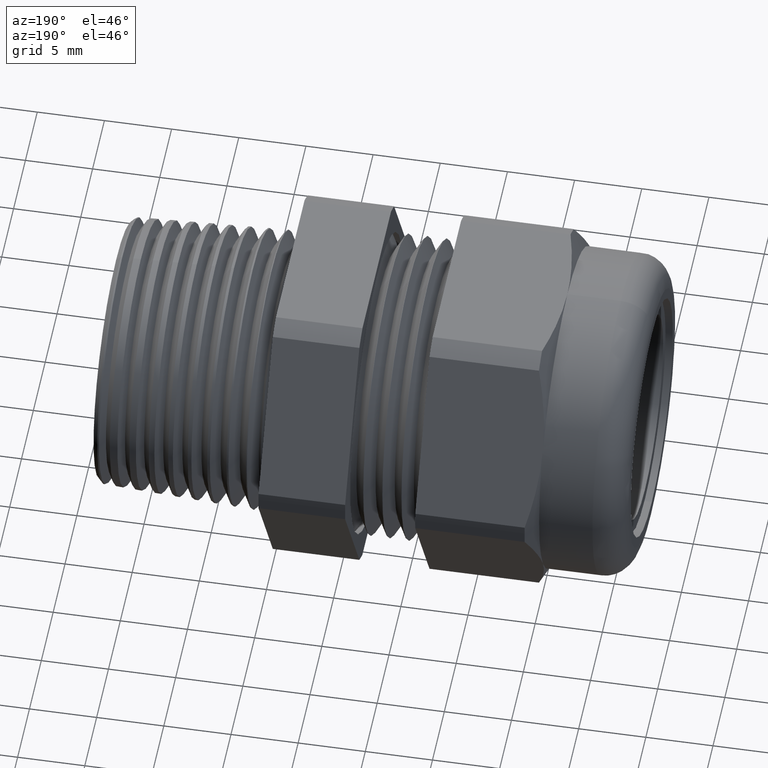
[diagram: clean part render]
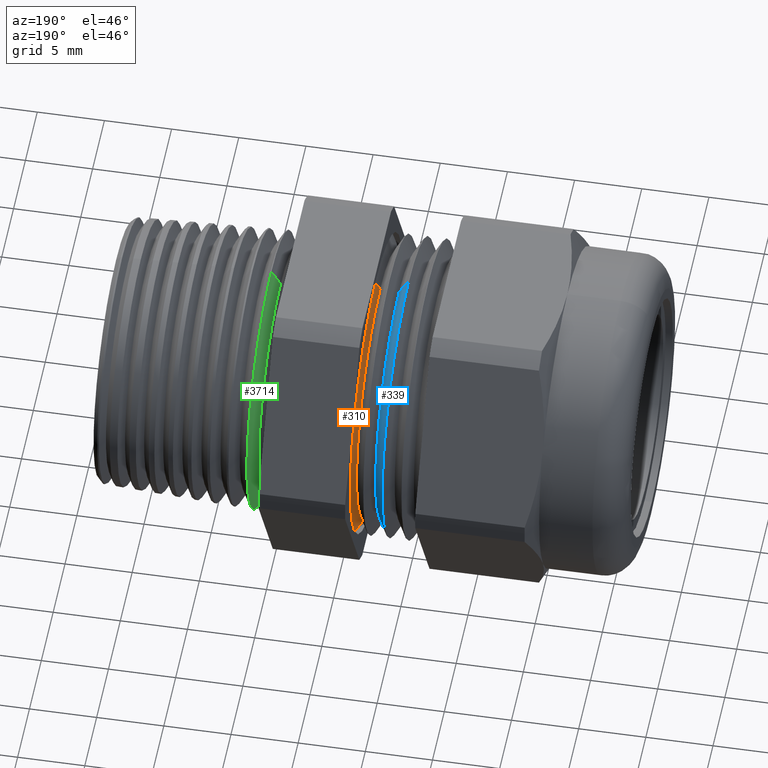
[diagram: same view with three faces highlighted in distinct colors, each labeled with its STEP entity id]
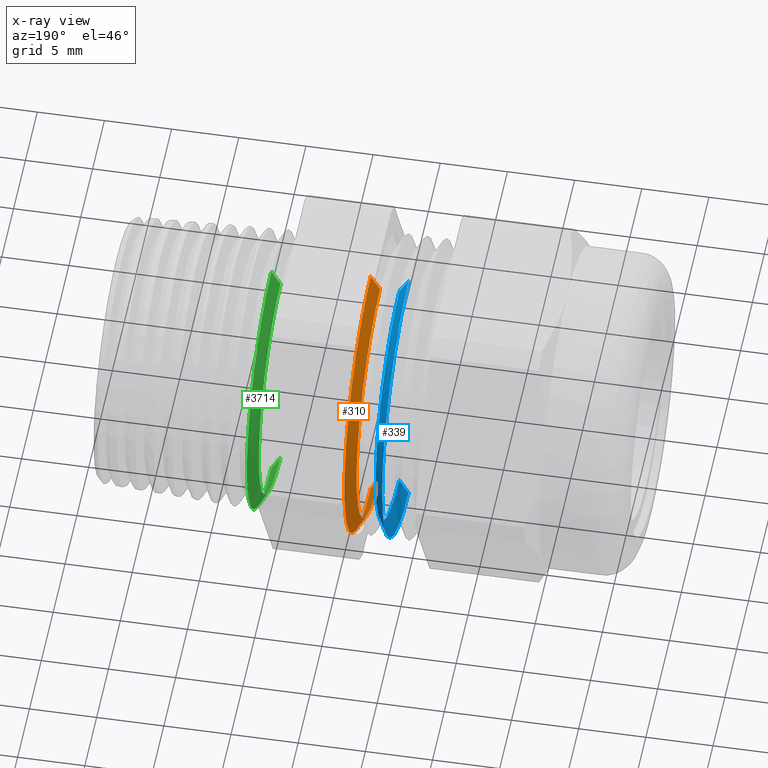
[diagram: x-ray of the same camera — body ghosted, the three highlighted faces saturated]
A machine part, auxiliary view with three faces highlighted in distinct colors.
The next image is the same camera in x-ray (body ghosted, the three faces saturated) — at least one of them is partly hidden behind the body in this view.
Their STEP definitions:

[orange] entity #310 — the highlighted conical surface has half-angle 60 deg.
#310 = ADVANCED_FACE ( 'NONE', ( #1347 ), #1345, .T. ) ;
#311 = EDGE_LOOP ( 'NONE', ( #334, #335, #328, #3715 ) ) ;
#327 = VERTEX_POINT ( 'NONE', #1383 ) ;
#328 = ORIENTED_EDGE ( 'NONE', *, *, #329, .F. ) ;
#329 = EDGE_CURVE ( 'NONE', #330, #337, #1382, .T. ) ;
#330 = VERTEX_POINT ( 'NONE', #1377 ) ;
#334 = ORIENTED_EDGE ( 'NONE', *, *, #3699, .T. ) ;
#335 = ORIENTED_EDGE ( 'NONE', *, *, #336, .T. ) ;
#336 = EDGE_CURVE ( 'NONE', #327, #337, #1374, .T. ) ;
#337 = VERTEX_POINT ( 'NONE', #1430 ) ;
#1341 = DIRECTION ( 'NONE',  ( 0.0000000000000000000, 0.0000000000000000000, -1.000000000000000000 ) ) ;
#1342 = DIRECTION ( 'NONE',  ( 1.000000000000000000, 0.0000000000000000000, 0.0000000000000000000 ) ) ;
#1343 = CARTESIAN_POINT ( 'NONE',  ( -0.2636666794885450500, 0.0000000000000000000, 0.0000000000000000000 ) ) ;
#1344 = AXIS2_PLACEMENT_3D ( 'NONE', #1343, #1342, #1341 ) ;
#1345 = CONICAL_SURFACE ( 'NONE', #1344, 0.3922686249999999800, 1.047197551196595600 ) ;
#1347 = FACE_OUTER_BOUND ( 'NONE', #311, .T. ) ;
#1367 = DIRECTION ( 'NONE',  ( 0.5000000000000017800, 1.060575238724905400E-016, 0.8660254037844374900 ) ) ;
#1368 = VECTOR ( 'NONE', #1367, 39.37007874015748100 ) ;
#1369 = CARTESIAN_POINT ( 'NONE',  ( -0.2636666794885450500, 4.803905160121833900E-017, 0.3922686249999999800 ) ) ;
#1374 = LINE ( 'NONE', #1369, #1368 ) ;
#1377 = CARTESIAN_POINT ( 'NONE',  ( -0.2361666923104228900, 0.0000000000000000000, -0.4399000000000000100 ) ) ;
#1378 = DIRECTION ( 'NONE',  ( 0.0000000000000000000, 0.0000000000000000000, -1.000000000000000000 ) ) ;
#1379 = DIRECTION ( 'NONE',  ( 1.000000000000000000, 0.0000000000000000000, 0.0000000000000000000 ) ) ;
#1380 = CARTESIAN_POINT ( 'NONE',  ( -0.2361666923104228900, 0.0000000000000000000, 0.0000000000000000000 ) ) ;
#1381 = AXIS2_PLACEMENT_3D ( 'NONE', #1380, #1379, #1378 ) ;
#1382 = CIRCLE ( 'NONE', #1381, 0.4399000000000000100 ) ;
#1383 = CARTESIAN_POINT ( 'NONE',  ( -0.2636666794885450500, 5.095563214785520700E-017, 0.3922686249999999800 ) ) ;
#1430 = CARTESIAN_POINT ( 'NONE',  ( -0.2361666923104228900, 5.387221269449206900E-017, 0.4399000000000000100 ) ) ;
#3104 = DIRECTION ( 'NONE',  ( 0.0000000000000000000, 0.0000000000000000000, -1.000000000000000000 ) ) ;
#3105 = DIRECTION ( 'NONE',  ( 1.000000000000000000, 0.0000000000000000000, 0.0000000000000000000 ) ) ;
#3106 = AXIS2_PLACEMENT_3D ( 'NONE', #3111, #3105, #3104 ) ;
#3107 = CIRCLE ( 'NONE', #3106, 0.3922686249999999800 ) ;
#3111 = CARTESIAN_POINT ( 'NONE',  ( -0.2636666794885450500, 0.0000000000000000000, 0.0000000000000000000 ) ) ;
#3128 = DIRECTION ( 'NONE',  ( 0.5000000000000017800, 0.0000000000000000000, -0.8660254037844374900 ) ) ;
#3129 = VECTOR ( 'NONE', #3128, 39.37007874015748100 ) ;
#3130 = CARTESIAN_POINT ( 'NONE',  ( -0.2636666794885450500, 0.0000000000000000000, -0.3922686249999999800 ) ) ;
#3131 = LINE ( 'NONE', #3130, #3129 ) ;
#3132 = CARTESIAN_POINT ( 'NONE',  ( -0.2636666794885450500, 0.0000000000000000000, -0.3922686249999999800 ) ) ;
#3699 = EDGE_CURVE ( 'NONE', #3716, #327, #3107, .T. ) ;
#3715 = ORIENTED_EDGE ( 'NONE', *, *, #3717, .F. ) ;
#3716 = VERTEX_POINT ( 'NONE', #3132 ) ;
#3717 = EDGE_CURVE ( 'NONE', #3716, #330, #3131, .T. ) ;

[blue] entity #339 — the highlighted conical surface has half-angle 60 deg.
#304 = VERTEX_POINT ( 'NONE', #1356 ) ;
#305 = EDGE_CURVE ( 'NONE', #343, #304, #1355, .T. ) ;
#316 = EDGE_LOOP ( 'NONE', ( #340, #319, #3533, #347 ) ) ;
#319 = ORIENTED_EDGE ( 'NONE', *, *, #320, .T. ) ;
#320 = EDGE_CURVE ( 'NONE', #342, #321, #1397, .T. ) ;
#321 = VERTEX_POINT ( 'NONE', #1393 ) ;
#339 = ADVANCED_FACE ( 'NONE', ( #1424 ), #1423, .T. ) ;
#340 = ORIENTED_EDGE ( 'NONE', *, *, #341, .F. ) ;
#341 = EDGE_CURVE ( 'NONE', #342, #343, #1417, .T. ) ;
#342 = VERTEX_POINT ( 'NONE', #1413 ) ;
#343 = VERTEX_POINT ( 'NONE', #1412 ) ;
#347 = ORIENTED_EDGE ( 'NONE', *, *, #305, .F. ) ;
#386 = EDGE_CURVE ( 'NONE', #321, #304, #1517, .T. ) ;
#1352 = DIRECTION ( 'NONE',  ( -0.4999999999999962800, 0.0000000000000000000, 0.8660254037844408200 ) ) ;
#1353 = VECTOR ( 'NONE', #1352, 39.37007874015748100 ) ;
#1354 = CARTESIAN_POINT ( 'NONE',  ( -0.3471666666666668500, 0.0000000000000000000, 0.4399000000000000100 ) ) ;
#1355 = LINE ( 'NONE', #1354, #1353 ) ;
#1356 = CARTESIAN_POINT ( 'NONE',  ( -0.3471666666666668500, 0.0000000000000000000, 0.4399000000000000100 ) ) ;
#1393 = CARTESIAN_POINT ( 'NONE',  ( -0.3471666666666668500, 5.387221269449206900E-017, -0.4399000000000000100 ) ) ;
#1394 = DIRECTION ( 'NONE',  ( -0.4999999999999962800, 1.060575238724909500E-016, -0.8660254037844408200 ) ) ;
#1395 = VECTOR ( 'NONE', #1394, 39.37007874015748100 ) ;
#1396 = CARTESIAN_POINT ( 'NONE',  ( -0.3471666666666668500, 5.387221269449206900E-017, -0.4399000000000000100 ) ) ;
#1397 = LINE ( 'NONE', #1396, #1395 ) ;
#1412 = CARTESIAN_POINT ( 'NONE',  ( -0.3196666794885451000, 5.095563214785520700E-017, 0.3922686249999999800 ) ) ;
#1413 = CARTESIAN_POINT ( 'NONE',  ( -0.3196666794885451000, 0.0000000000000000000, -0.3922686249999999800 ) ) ;
#1414 = DIRECTION ( 'NONE',  ( 0.0000000000000000000, 0.0000000000000000000, -1.000000000000000000 ) ) ;
#1415 = DIRECTION ( 'NONE',  ( 1.000000000000000000, 0.0000000000000000000, 0.0000000000000000000 ) ) ;
#1416 = AXIS2_PLACEMENT_3D ( 'NONE', #1422, #1415, #1414 ) ;
#1417 = CIRCLE ( 'NONE', #1416, 0.3922686249999999800 ) ;
#1418 = DIRECTION ( 'NONE',  ( 0.0000000000000000000, 0.0000000000000000000, 1.000000000000000000 ) ) ;
#1419 = DIRECTION ( 'NONE',  ( -1.000000000000000000, 0.0000000000000000000, 0.0000000000000000000 ) ) ;
#1420 = CARTESIAN_POINT ( 'NONE',  ( -0.3471666666666668500, 0.0000000000000000000, 0.0000000000000000000 ) ) ;
#1421 = AXIS2_PLACEMENT_3D ( 'NONE', #1420, #1419, #1418 ) ;
#1422 = CARTESIAN_POINT ( 'NONE',  ( -0.3196666794885451000, 0.0000000000000000000, 0.0000000000000000000 ) ) ;
#1423 = CONICAL_SURFACE ( 'NONE', #1421, 0.4399000000000000100, 1.047197551196602100 ) ;
#1424 = FACE_OUTER_BOUND ( 'NONE', #316, .T. ) ;
#1513 = DIRECTION ( 'NONE',  ( 0.0000000000000000000, 0.0000000000000000000, -1.000000000000000000 ) ) ;
#1514 = DIRECTION ( 'NONE',  ( 1.000000000000000000, 0.0000000000000000000, 0.0000000000000000000 ) ) ;
#1515 = CARTESIAN_POINT ( 'NONE',  ( -0.3471666666666668500, 0.0000000000000000000, 0.0000000000000000000 ) ) ;
#1516 = AXIS2_PLACEMENT_3D ( 'NONE', #1515, #1514, #1513 ) ;
#1517 = CIRCLE ( 'NONE', #1516, 0.4399000000000000100 ) ;
#3533 = ORIENTED_EDGE ( 'NONE', *, *, #386, .T. ) ;

[green] entity #3714 — the highlighted conical surface has half-angle 60 deg.
#2780 = DIRECTION ( 'NONE',  ( 0.5000000000000013300, 1.060575238724905700E-016, 0.8660254037844377100 ) ) ;
#2781 = VECTOR ( 'NONE', #2780, 39.37007874015748900 ) ;
#2782 = CARTESIAN_POINT ( 'NONE',  ( 0.02823799982586398800, 4.422081408375542100E-017, 0.3610903495974813200 ) ) ;
#2783 = LINE ( 'NONE', #2782, #2781 ) ;
#2799 = CARTESIAN_POINT ( 'NONE',  ( 0.05508737596557451700, 0.0000000000000000000, 0.4075948332229873400 ) ) ;
#3095 = VECTOR ( 'NONE', #3156, 39.37007874015748900 ) ;
#3096 = CARTESIAN_POINT ( 'NONE',  ( 0.02823799982586398800, 0.0000000000000000000, -0.3610903495974813200 ) ) ;
#3097 = LINE ( 'NONE', #3096, #3095 ) ;
#3133 = DIRECTION ( 'NONE',  ( 0.0000000000000000000, 0.0000000000000000000, -1.000000000000000000 ) ) ;
#3134 = DIRECTION ( 'NONE',  ( 1.000000000000000000, 0.0000000000000000000, 0.0000000000000000000 ) ) ;
#3135 = CARTESIAN_POINT ( 'NONE',  ( 0.02823799982586398800, 0.0000000000000000000, 0.0000000000000000000 ) ) ;
#3136 = AXIS2_PLACEMENT_3D ( 'NONE', #3135, #3134, #3133 ) ;
#3137 = CONICAL_SURFACE ( 'NONE', #3136, 0.3610903495974813200, 1.047197551196596100 ) ;
#3138 = FACE_OUTER_BOUND ( 'NONE', #3712, .T. ) ;
#3143 = DIRECTION ( 'NONE',  ( 0.0000000000000000000, 0.0000000000000000000, 1.000000000000000000 ) ) ;
#3144 = DIRECTION ( 'NONE',  ( -1.000000000000000000, 0.0000000000000000000, 0.0000000000000000000 ) ) ;
#3145 = CARTESIAN_POINT ( 'NONE',  ( 0.02823799982586398800, 0.0000000000000000000, 0.0000000000000000000 ) ) ;
#3146 = AXIS2_PLACEMENT_3D ( 'NONE', #3145, #3144, #3143 ) ;
#3147 = CIRCLE ( 'NONE', #3146, 0.3610903495974813200 ) ;
#3148 = CARTESIAN_POINT ( 'NONE',  ( 0.02823799982586398800, 0.0000000000000000000, 0.3610903495974813200 ) ) ;
#3149 = CARTESIAN_POINT ( 'NONE',  ( 0.02823799982586398800, 4.508213974712478200E-017, -0.3610903495974813200 ) ) ;
#3150 = DIRECTION ( 'NONE',  ( 0.0000000000000000000, 0.0000000000000000000, 1.000000000000000000 ) ) ;
#3151 = DIRECTION ( 'NONE',  ( -1.000000000000000000, 0.0000000000000000000, 0.0000000000000000000 ) ) ;
#3152 = CARTESIAN_POINT ( 'NONE',  ( 0.05508737596557451700, 0.0000000000000000000, 0.0000000000000000000 ) ) ;
#3153 = AXIS2_PLACEMENT_3D ( 'NONE', #3152, #3151, #3150 ) ;
#3154 = CIRCLE ( 'NONE', #3153, 0.4075948332229873400 ) ;
#3155 = CARTESIAN_POINT ( 'NONE',  ( 0.05508737596557451700, 4.991597078555306700E-017, -0.4075948332229873400 ) ) ;
#3156 = DIRECTION ( 'NONE',  ( 0.5000000000000013300, 0.0000000000000000000, -0.8660254037844377100 ) ) ;
#3522 = VERTEX_POINT ( 'NONE', #2799 ) ;
#3530 = EDGE_CURVE ( 'NONE', #3709, #3522, #2783, .T. ) ;
#3531 = ORIENTED_EDGE ( 'NONE', *, *, #3530, .T. ) ;
#3703 = EDGE_CURVE ( 'NONE', #3708, #3705, #3097, .T. ) ;
#3704 = ORIENTED_EDGE ( 'NONE', *, *, #3703, .F. ) ;
#3705 = VERTEX_POINT ( 'NONE', #3155 ) ;
#3706 = ORIENTED_EDGE ( 'NONE', *, *, #3707, .T. ) ;
#3707 = EDGE_CURVE ( 'NONE', #3522, #3705, #3154, .T. ) ;
#3708 = VERTEX_POINT ( 'NONE', #3149 ) ;
#3709 = VERTEX_POINT ( 'NONE', #3148 ) ;
#3710 = ORIENTED_EDGE ( 'NONE', *, *, #3711, .F. ) ;
#3711 = EDGE_CURVE ( 'NONE', #3709, #3708, #3147, .T. ) ;
#3712 = EDGE_LOOP ( 'NONE', ( #3710, #3531, #3706, #3704 ) ) ;
#3714 = ADVANCED_FACE ( 'NONE', ( #3138 ), #3137, .T. ) ;